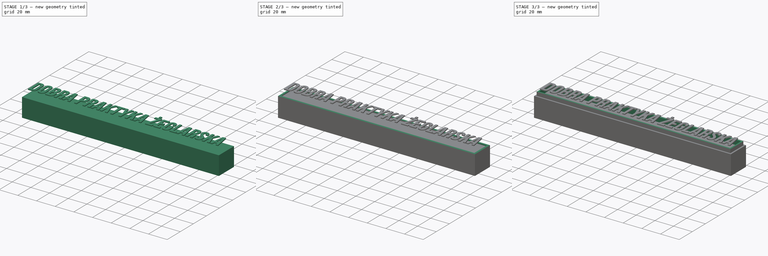
[diagram: build sequence overview — one tinted view per stage of 3, left to right]
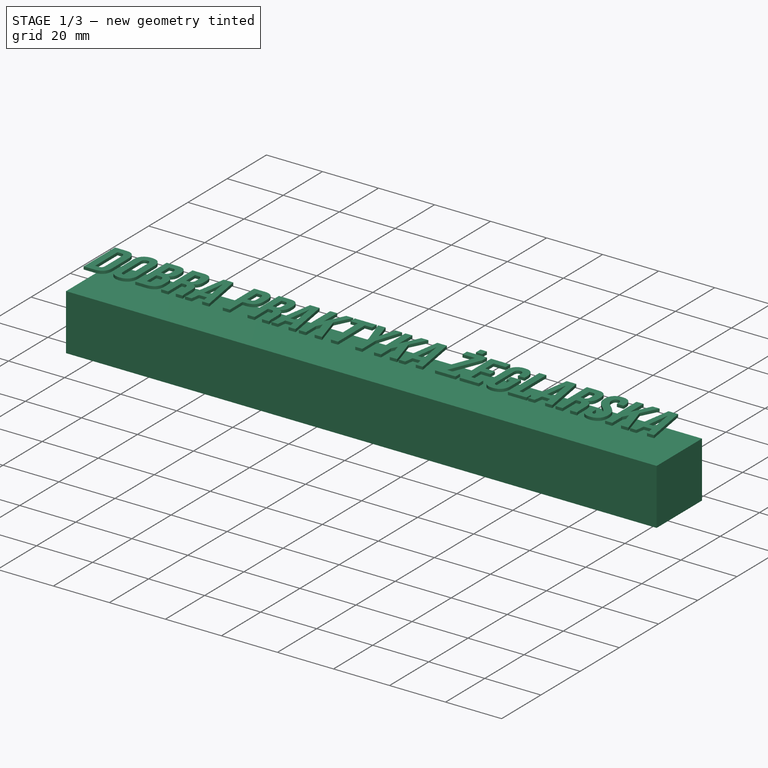
[diagram: stage 1 of 3 — iso view after this stage's code; geometry added in this stage tinted green]
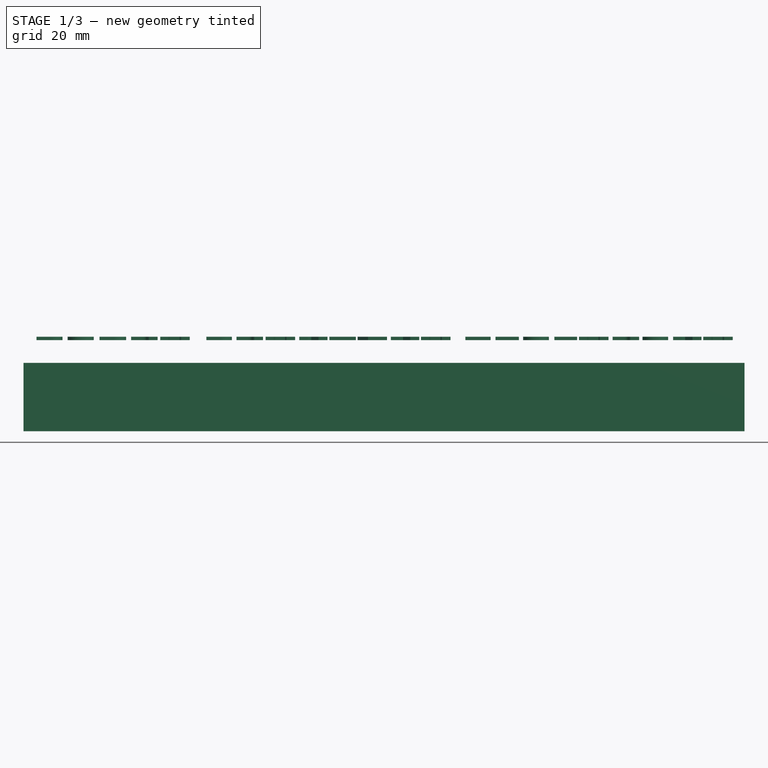
[diagram: stage 1 of 3 — front view after this stage's code; geometry added in this stage tinted green]
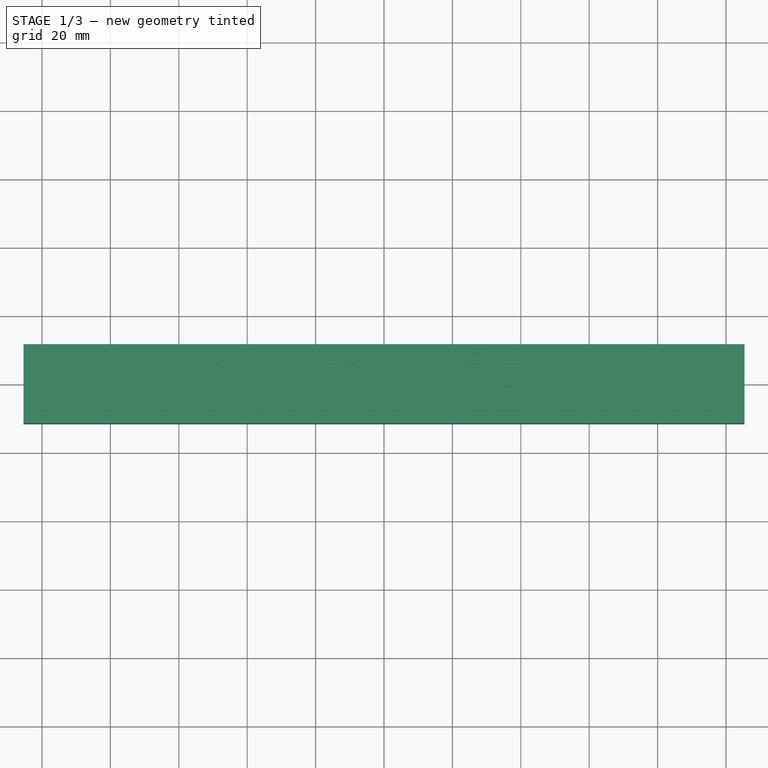
[diagram: stage 1 of 3 — top view after this stage's code; geometry added in this stage tinted green]
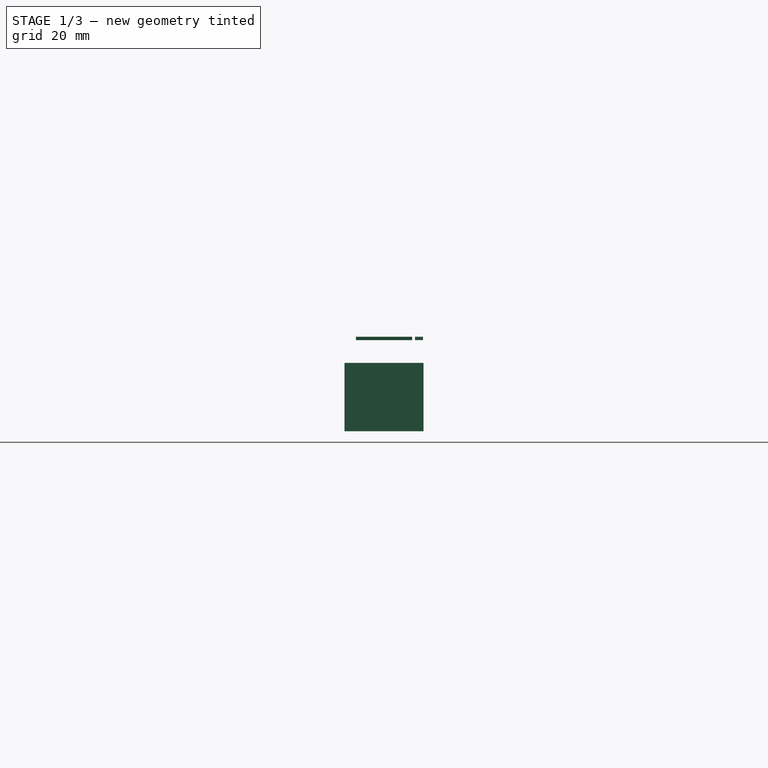
[diagram: stage 1 of 3 — right view after this stage's code; geometry added in this stage tinted green]
FCSTD DOCUMENT  (FreeCAD 1.0R39109 (Git))
Label: Cover
License: All rights reserved
LicenseURL: https://en.wikipedia.org/wiki/All_rights_reserved
objects: Sketcher::SketchObject×4, PartDesign::Pad×3, PartDesign::Thickness×2, PartDesign::Body×2, Spreadsheet::Sheet×1, Part::Part2DObjectPython×1, PartDesign::Pocket×1, Part::Extrusion×1
note: 30 computed .brp shape members not serialized (recipe doc carries the construction recipe); baked Part::Feature solids carry a one-line shape summary decoded from their .brp

FEATURE [PartDesign::Body] Body  label="Base"
  AllowCompound = false
  Group = -> [Sketch,Pad,Thickness]
  Origin = -> Origin
  Tip = -> Thickness
FEATURE [Sketcher::SketchObject] Sketch001
  ArcFitTolerance = 1e-06
  AttachmentSupport = -> [XY_Plane001]
  FullyConstrained = true
  MakeInternals = false
  MapMode = 5
  expr: Constraints[10] = <<Dimensions>>.Cover_Depth
  expr: Constraints[9] = <<Dimensions>>.Cover_Length
  sketch-geometry (4):
    g0: LineSegment StartX=-105.4 StartY=-11.55 StartZ=0 EndX=105.4 EndY=-11.55 EndZ=0
    g1: LineSegment StartX=105.4 StartY=-11.55 StartZ=0 EndX=105.4 EndY=11.55 EndZ=0
    g2: LineSegment StartX=105.4 StartY=11.55 StartZ=0 EndX=-105.4 EndY=11.55 EndZ=0
    g3: LineSegment StartX=-105.4 StartY=11.55 StartZ=0 EndX=-105.4 EndY=-11.55 EndZ=0
  constraints (11):
    c: Coincident(g0,g1)
    c: Coincident(g1,g2)
    c: Coincident(g2,g3)
    c: Coincident(g3,g0)
    c: Horizontal(g0)
    c: Horizontal(g2)
    c: Vertical(g1)
    c: Vertical(g3)
    c: Symmetric(g0,g1,g-1)
    c: DistanceX(g2,g2) = 210.8
    c: DistanceY(g1,g1) = 23.1
FEATURE [PartDesign::Pad] Pad001
  Direction = (0,0,1)
  Length = 20
  Length2 = 10
  Profile = -> Sketch001
  ReferenceAxis = -> Sketch001 [N_Axis]
  Refine = true
  Suppressed = false
  Type = 0
  expr: Length = <<Dimensions>>.Cover_Height
FEATURE [PartDesign::Body] Body001  label="Cover"
  AllowCompound = false
  Group = -> [Sketch001,Pad001,Thickness001,Sketch002,Pad002,Sketch003,Pocket]
  Origin = -> Origin001
  Placement = pos=(0,0,6.65) rot=(0,0,1;0rad)
  Tip = -> Pocket
  expr: .Placement.Base.z = <<Dimensions>>.Base_Height - <<Dimensions>>.Cover_Height + <<Dimensions>>.Cover_Thickness + <<Dimensions>>.Gap
FEATURE [Part::Extrusion] Extrude
  Base = -> ShapeString
  Dir = (0,0,1)
  DirMode = 2
  FaceMakerClass = Part::FaceMakerBullseye
  FaceMakerMode = 3
  LengthFwd = 1
  LengthRev = 0
  Solid = false
  Symmetric = false
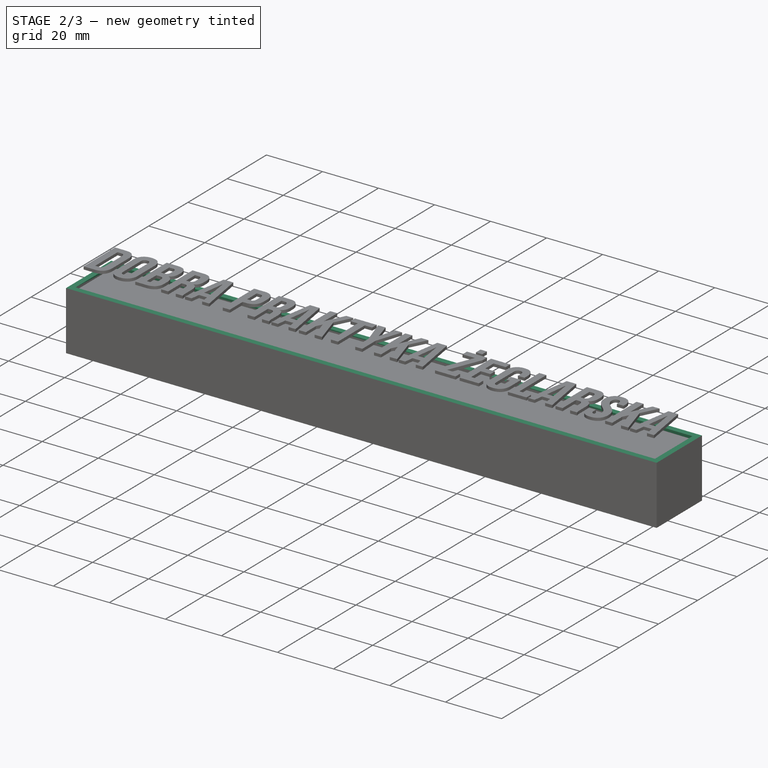
[diagram: stage 2 of 3 — iso view after this stage's code; geometry added in this stage tinted green]
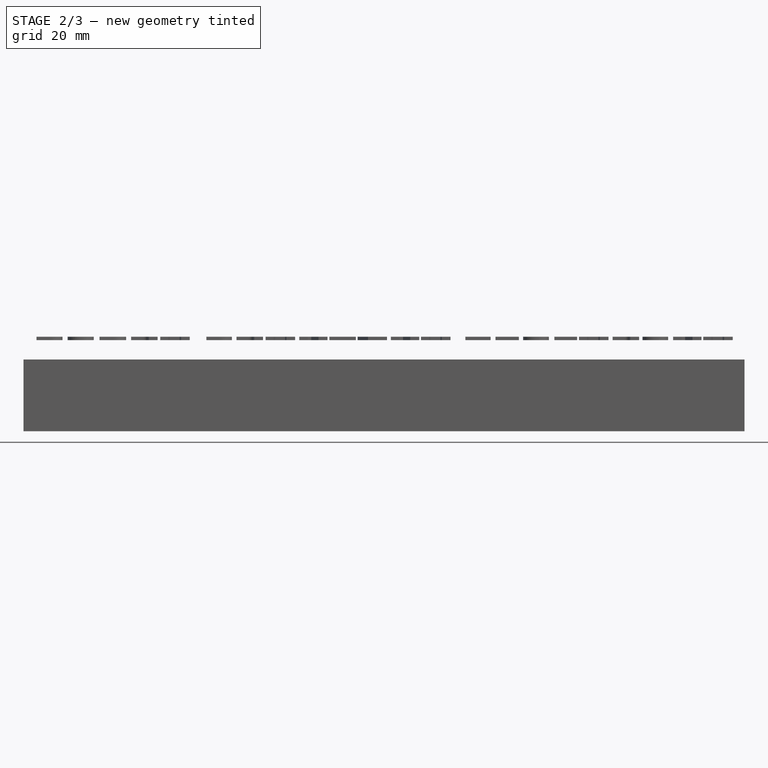
[diagram: stage 2 of 3 — front view after this stage's code; geometry added in this stage tinted green]
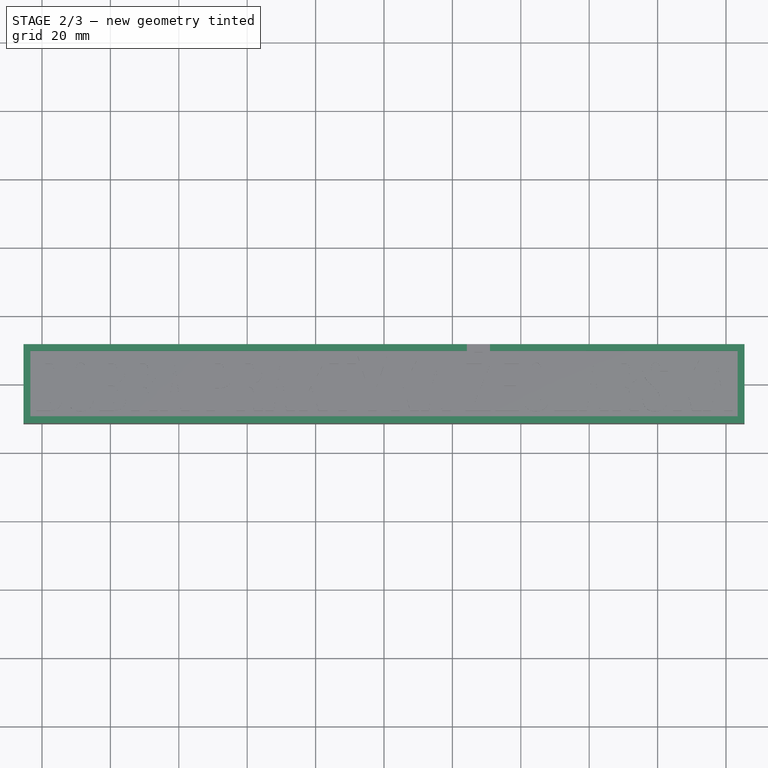
[diagram: stage 2 of 3 — top view after this stage's code; geometry added in this stage tinted green]
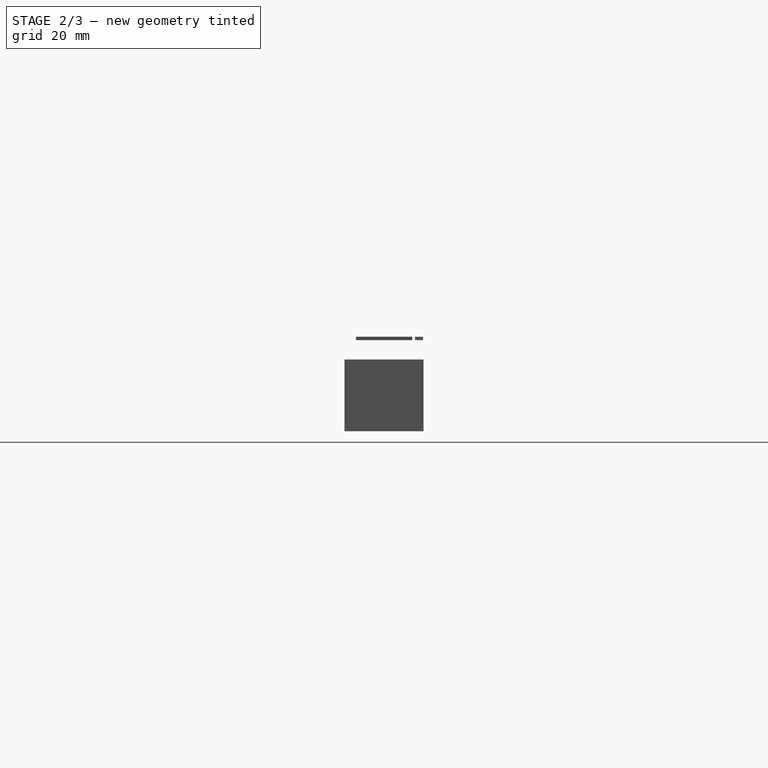
[diagram: stage 2 of 3 — right view after this stage's code; geometry added in this stage tinted green]
FEATURE [PartDesign::Thickness] Thickness001
  Base = -> Pad001 [Face5]
  BaseFeature = -> Pad001
  Intersection = false
  Join = 0
  Mode = 0
  Refine = true
  Reversed = true
  SupportTransform = false
  Suppressed = false
  Value = 1.5
  expr: Value = <<Dimensions>>.Cover_Thickness
FEATURE [Sketcher::SketchObject] Sketch002
  ArcFitTolerance = 1e-06
  AttachmentSupport = -> [Thickness001]
  ExternalGeometry = -> [Thickness001]
  FullyConstrained = true
  MakeInternals = false
  MapMode = 5
  Placement = pos=(0,0,20) rot=(0,0,1;0rad)
  sketch-geometry (8):
    g0: LineSegment StartX=-103.4 StartY=-9.55 StartZ=0 EndX=103.4 EndY=-9.55 EndZ=0
    g1: LineSegment StartX=103.4 StartY=-9.55 StartZ=0 EndX=103.4 EndY=9.55 EndZ=0
    g2: LineSegment StartX=103.4 StartY=9.55 StartZ=0 EndX=-103.4 EndY=9.55 EndZ=0
    g3: LineSegment StartX=-103.4 StartY=9.55 StartZ=0 EndX=-103.4 EndY=-9.55 EndZ=0
    g4: LineSegment StartX=-105.4 StartY=11.55 StartZ=0 EndX=-105.4 EndY=-11.55 EndZ=0
    g5: LineSegment StartX=-105.4 StartY=-11.55 StartZ=0 EndX=105.4 EndY=-11.55 EndZ=0
    g6: LineSegment StartX=105.4 StartY=-11.55 StartZ=0 EndX=105.4 EndY=11.55 EndZ=0
    g7: LineSegment StartX=105.4 StartY=11.55 StartZ=0 EndX=-105.4 EndY=11.55 EndZ=0
  constraints (21):
    c: Coincident(g0,g1)
    c: Coincident(g1,g2)
    c: Coincident(g2,g3)
    c: Coincident(g3,g0)
    c: Horizontal(g0)
    c: Horizontal(g2)
    c: Vertical(g1)
    c: Vertical(g3)
    c: DistanceX(g1,g-3) = 2
    c: DistanceY(g1,g-3) = 2
    c: Symmetric(g1,g0,g-1)
    c: Coincident(g4,g5)
    c: Coincident(g5,g6)
    c: Coincident(g6,g7)
    c: Coincident(g7,g4)
    c: Vertical(g4)
    c: Vertical(g6)
    c: Horizontal(g5)
    c: Horizontal(g7)
    c: Coincident(g4,g-3)
    c: Coincident(g5,g-4)
FEATURE [PartDesign::Pad] Pad002
  BaseFeature = -> Thickness001
  Direction = (0,0,1)
  Length = 1
  Length2 = 10
  Profile = -> Sketch002
  ReferenceAxis = -> Sketch002 [N_Axis]
  Refine = true
  Suppressed = false
  Type = 0
  expr: Length = <<Dimensions>>.Decor_Height
FEATURE [Part::Part2DObjectPython] ShapeString  # Draft 2D object (typed FeaturePython)
  AttachmentSupport = -> [Pad002]
  FontFile = <userpath>/Documents/Maker/DPZ-toothbruch-cover/Bebas_Neue/BebasNeue-Regular.ttf
  Fuse = false
  Justification = 6
  JustificationReference = 0
  KeepLeftMargin = false
  MakeFace = true
  ObliqueAngle = 0
  Placement = pos=(-101.6,-8,26.65) rot=(0,0,1;0rad)
  ScaleToSize = true
  Size = 16
  String = DOBRA PRAKTYKA ŻEGLARSKA
  Tracking = 0
  expr: .Placement.Base.z = <<Dimensions>>.Base_Height - <<Dimensions>>.Cover_Height + <<Dimensions>>.Cover_Thickness + <<Dimensions>>.Gap + <<Dimensions>>.Cover_Height
FEATURE [Sketcher::SketchObject] Sketch003
  ArcFitTolerance = 1e-06
  AttachmentSupport = -> [Pad002]
  ExternalGeometry = -> [Pad002]
  FullyConstrained = false
  MakeInternals = false
  MapMode = 5
  Placement = pos=(0,0,21) rot=(0,0,1;0rad)
  sketch-geometry (4):
    g0: LineSegment StartX=24.241 StartY=9.55 StartZ=0 EndX=30.991 EndY=9.55 EndZ=0
    g1: LineSegment StartX=30.991 StartY=9.55 StartZ=0 EndX=30.991 EndY=11.55 EndZ=0
    g2: LineSegment StartX=30.991 StartY=11.55 StartZ=0 EndX=24.241 EndY=11.55 EndZ=0
    g3: LineSegment StartX=24.241 StartY=11.55 StartZ=0 EndX=24.241 EndY=9.55 EndZ=0
  constraints (11):
    c: Coincident(g0,g1)
    c: Coincident(g1,g2)
    c: Coincident(g2,g3)
    c: Coincident(g3,g0)
    c: Horizontal(g0)
    c: Horizontal(g2)
    c: Vertical(g1)
    c: Vertical(g3)
    c: PointOnObject(g0,g-4)
    c: PointOnObject(g1,g-3)
    c: DistanceX(g0,g0) = 6.75
FEATURE [PartDesign::Pocket] Pocket
  BaseFeature = -> Pad002
  Direction = (0,0,-1)
  Length = 1
  Length2 = 5
  Profile = -> Sketch003
  ReferenceAxis = -> Sketch003 [N_Axis]
  Refine = true
  Suppressed = false
  Type = 0
  expr: Length = <<Dimensions>>.Decor_Height
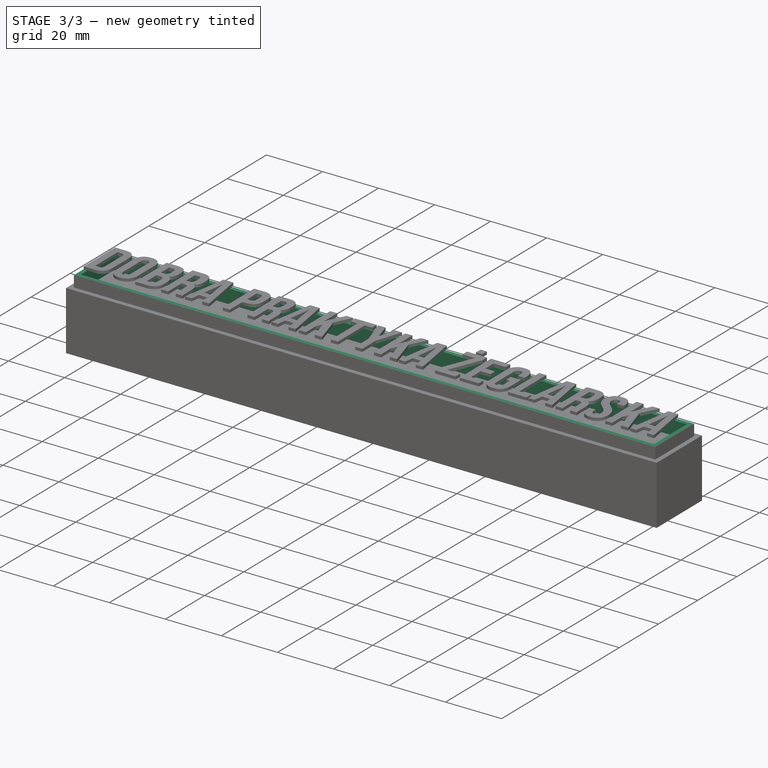
[diagram: stage 3 of 3 — iso view after this stage's code; geometry added in this stage tinted green]
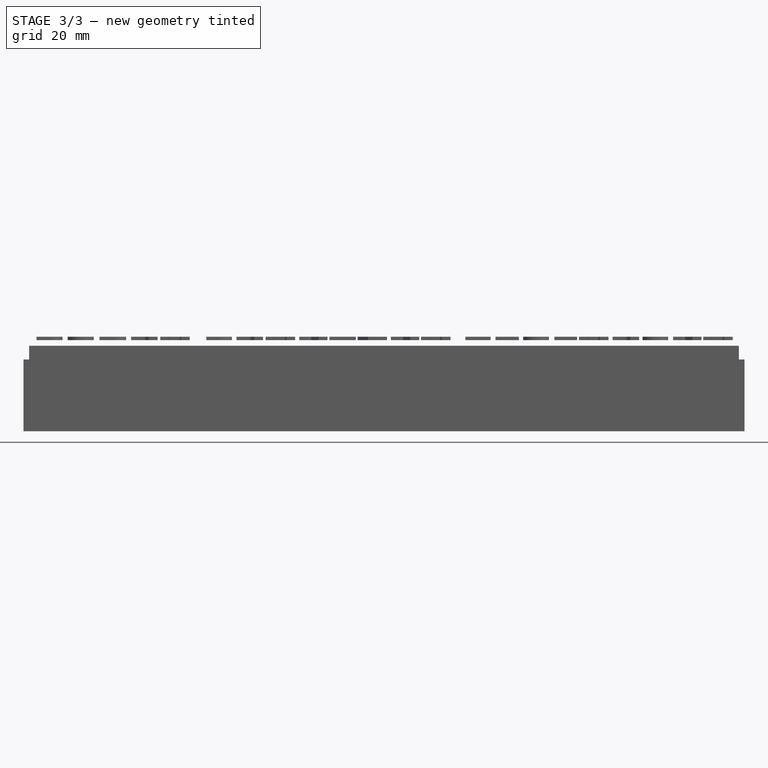
[diagram: stage 3 of 3 — front view after this stage's code; geometry added in this stage tinted green]
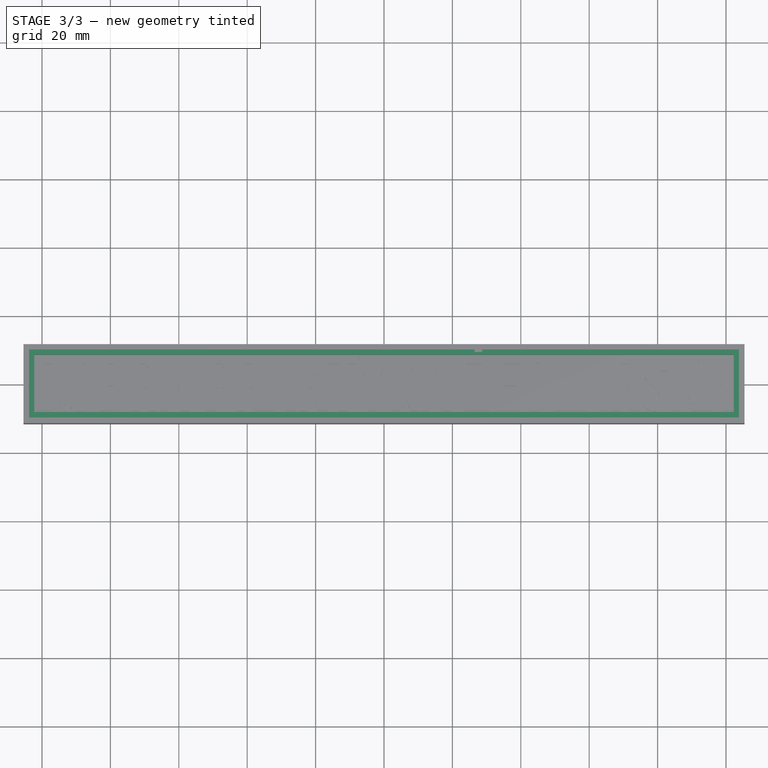
[diagram: stage 3 of 3 — top view after this stage's code; geometry added in this stage tinted green]
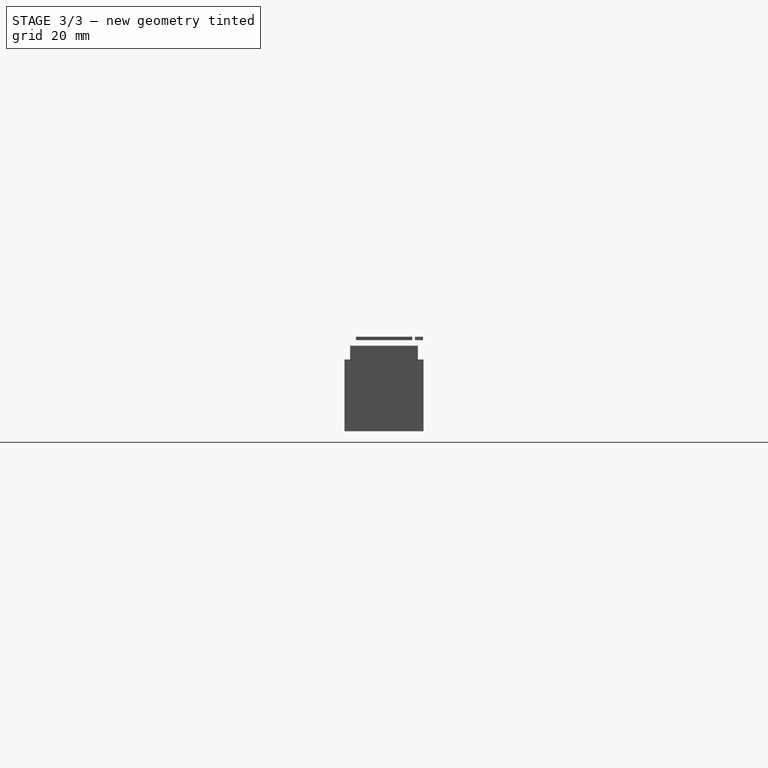
[diagram: stage 3 of 3 — right view after this stage's code; geometry added in this stage tinted green]
FEATURE [Sketcher::SketchObject] Sketch
  ArcFitTolerance = 1e-06
  AttachmentSupport = -> [XY_Plane]
  FullyConstrained = true
  MakeInternals = false
  MapMode = 5
  expr: Constraints[10] = <<Dimensions>>.Base_Depth
  expr: Constraints[9] = <<Dimensions>>.Base_Length
  sketch-geometry (4):
    g0: LineSegment StartX=-103.75 StartY=-9.9 StartZ=0 EndX=103.75 EndY=-9.9 EndZ=0
    g1: LineSegment StartX=103.75 StartY=-9.9 StartZ=0 EndX=103.75 EndY=9.9 EndZ=0
    g2: LineSegment StartX=103.75 StartY=9.9 StartZ=0 EndX=-103.75 EndY=9.9 EndZ=0
    g3: LineSegment StartX=-103.75 StartY=9.9 StartZ=0 EndX=-103.75 EndY=-9.9 EndZ=0
  constraints (11):
    c: Coincident(g0,g1)
    c: Coincident(g1,g2)
    c: Coincident(g2,g3)
    c: Coincident(g3,g0)
    c: Horizontal(g0)
    c: Horizontal(g2)
    c: Vertical(g1)
    c: Vertical(g3)
    c: Symmetric(g0,g1,g-1)
    c: DistanceX(g0,g0) = 207.5
    c: DistanceY(g1,g1) = 19.8
FEATURE [Spreadsheet::Sheet] Spreadsheet  label="Dimensions"
  cells = B1='Base; C1='Cover; A2='Length; B2(Base_Length)==207.5 mm; C2(Cover_Length)==Base_Length + 2 * Cover_Thickness + 2 * Gap; A3='Depth; B3(Base_Depth)==19.8 mm; C3(Cover_Depth)==Base_Depth + 2 * Cover_Thickness + 2 * Gap; A4='Height; B4(Base_Height)==25 mm; C4(Cover_Height)==20 mm; A5='Thickness; B5(Base_Thickness)==1.5 mm; C5(Cover_Thickness)==1.5 mm; A6='Decor Height; D6(Decor_Height)==1 mm; A8='Space between; B8(Gap)==0.15 mm; B14='Base; C14='Cover; A15='Length; B15==220 mm; C15==Base_Length + 2 * Cover_Thickness + 2 * Gap; A16='Depth; B16==25 mm; C16==Base_Depth + 2 * Cover_Thickness + 2 * Gap; A17='Height; B17==30 mm; C17==20 mm; A18='Thickness; B18==2 mm; C18==2 mm; A19='Decor Height; D19==1 mm; A21='Space between; B21==0.1 mm
FEATURE [PartDesign::Pad] Pad
  Direction = (0,0,1)
  Length = 25
  Length2 = 10
  Profile = -> Sketch
  ReferenceAxis = -> Sketch [N_Axis]
  Refine = true
  Suppressed = false
  Type = 0
  expr: Length = <<Dimensions>>.Base_Height
FEATURE [PartDesign::Thickness] Thickness
  Base = -> Pad [Face6]
  BaseFeature = -> Pad
  Intersection = false
  Join = 0
  Mode = 0
  Refine = true
  Reversed = true
  SupportTransform = false
  Suppressed = false
  Value = 1.5
  expr: Value = <<Dimensions>>.Base_Thickness
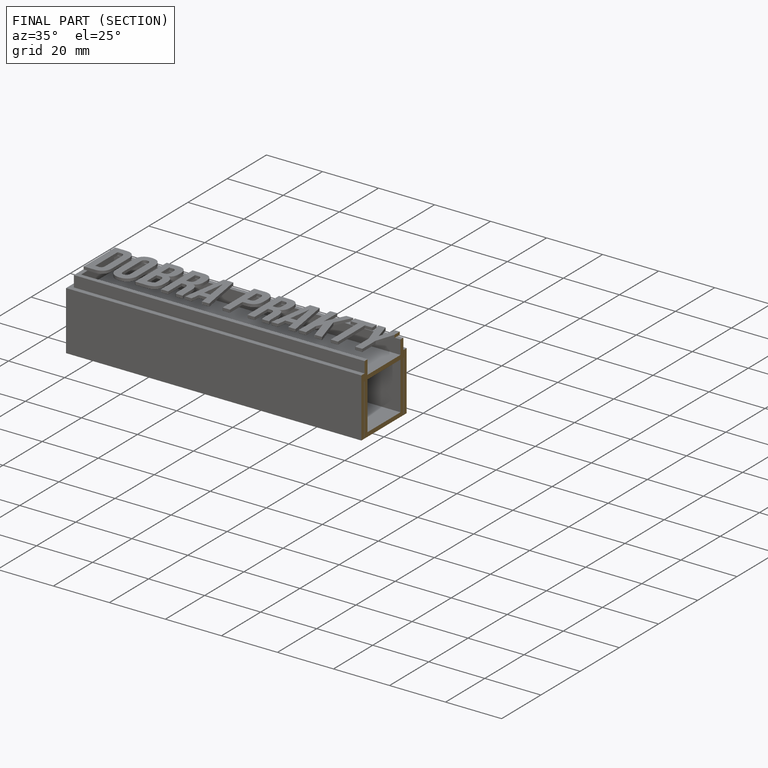
[diagram: finished part — half-section view (interior)]
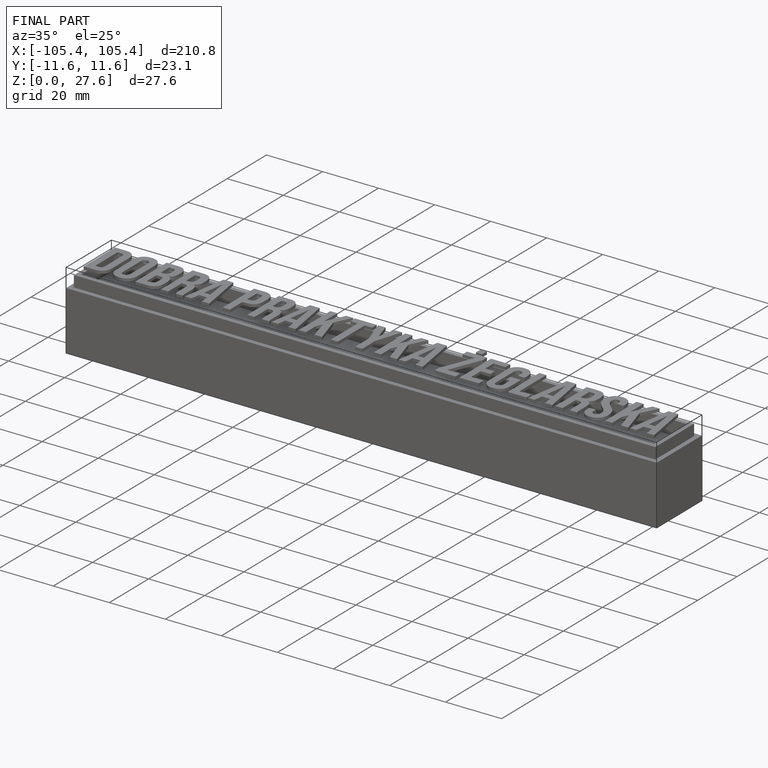
[diagram: finished part — iso view with bounding-box wireframe]
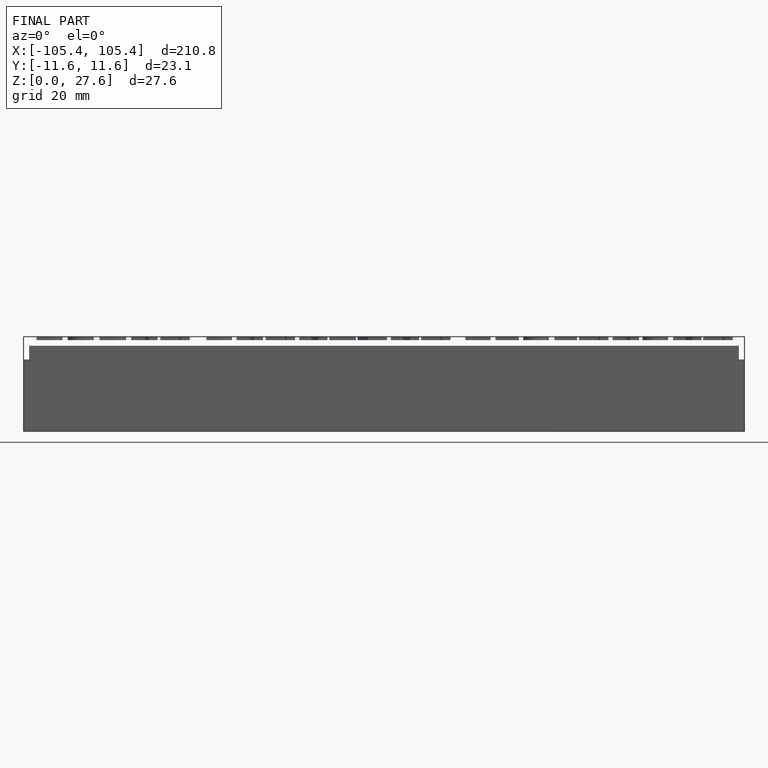
[diagram: finished part — front view with bounding-box wireframe]
